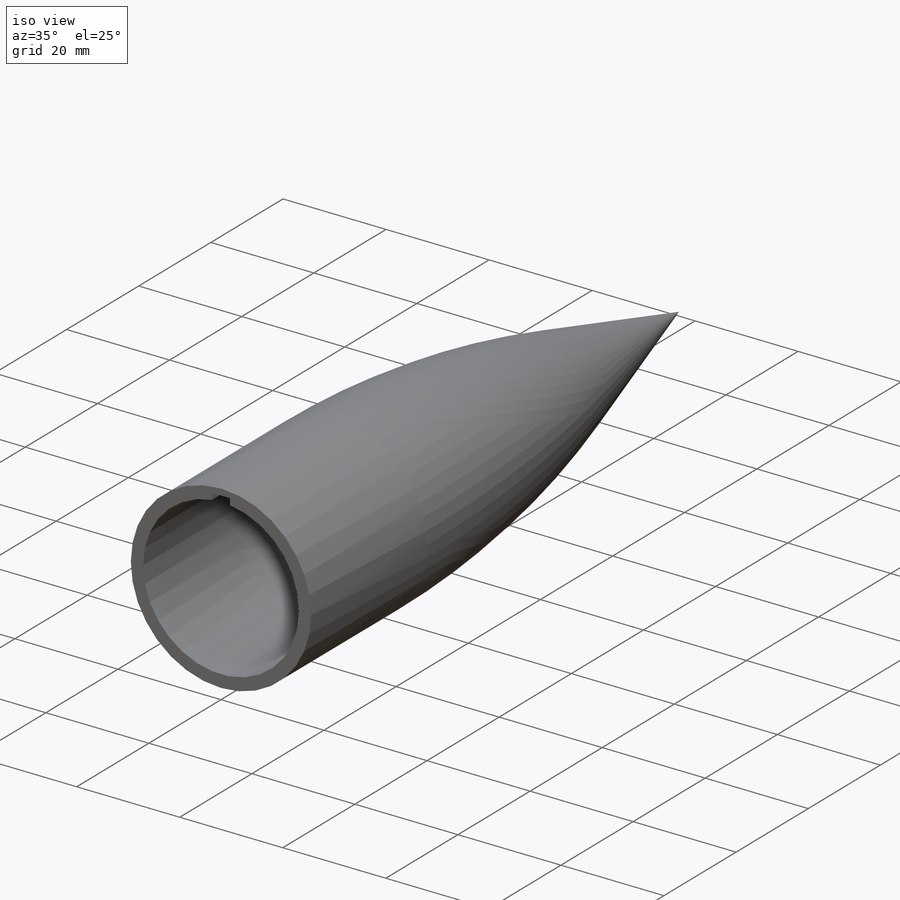
[diagram: iso view]
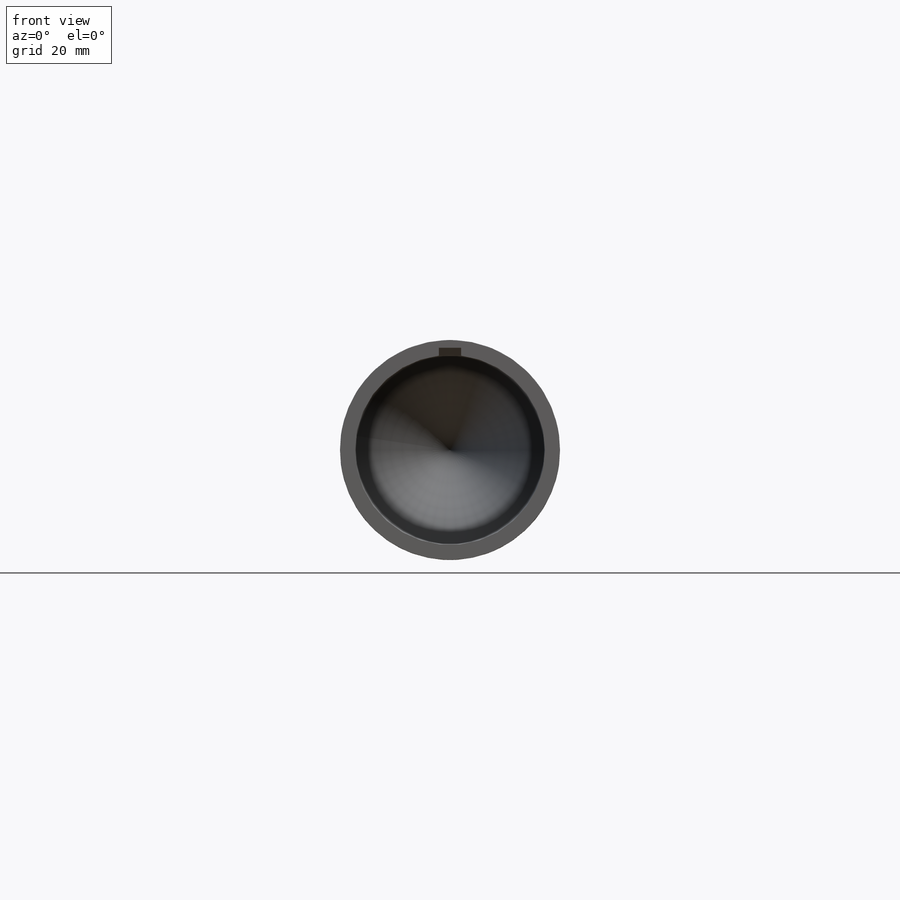
[diagram: front view]
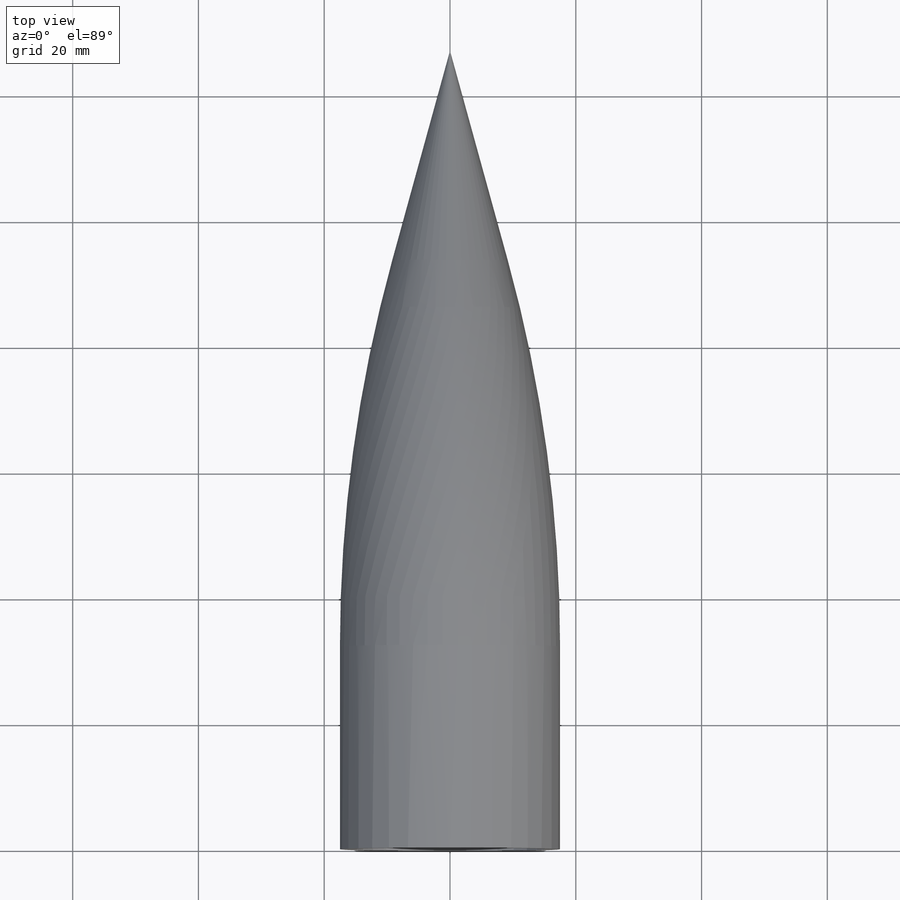
[diagram: top view]
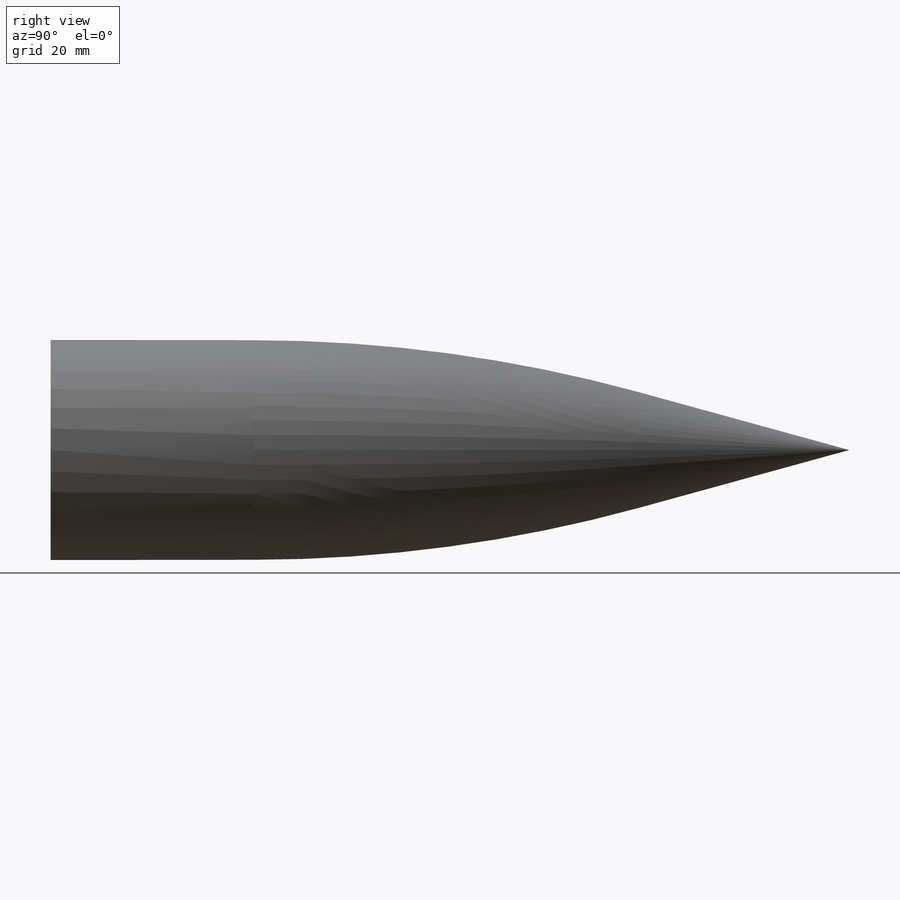
[diagram: right view]
SOLIDWORKS PART (.sldprt)
format: sldprt  version: not decoded by parser v0  size: 203,776 bytes
history: native  units: mm
features: sketch x4, cut_extrude x2, material x1, revolve x1, fillet x1, cut_revolve x1, chamfer x1 (+11 scaffold rows collapsed)
feature tree (22):
  scaffold x11  (default folders/planes/origin — collapsed)
  material  "Material <not specified>"
  sketch  "Sketch1"  dims[D1=127.0mm D2=17.5mm D3=63.5mm]
  revolve  "Revolve1"  Angle=360deg
  fillet  "Fillet1"  Radius=231.14mm
  sketch  "Sketch2"  dims[D1=30.226mm]
  cut_extrude  "Cut-Extrude1"  Depth=25.4mm
  sketch  "Sketch3"
  cut_revolve  "Cut-Revolve1"  Angle=360deg
  sketch  "Sketch4"  dims[D1=3.556mm D2=12.7mm]
  cut_extrude  "Cut-Extrude2"  Depth=19.812mm
  chamfer  "Chamfer1"  Distance=2.54mm Angle=45deg
decode coverage: 9 of 10 modeling features carry decoded parameters
note: suppression state not decoded; provenance and decode notes live in map.json
